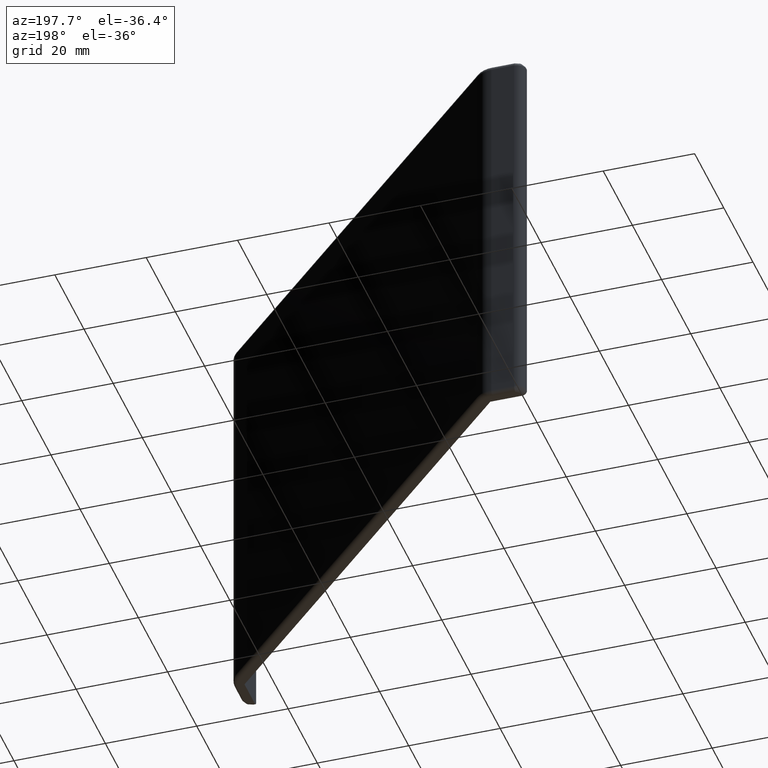
[diagram: clean part render]
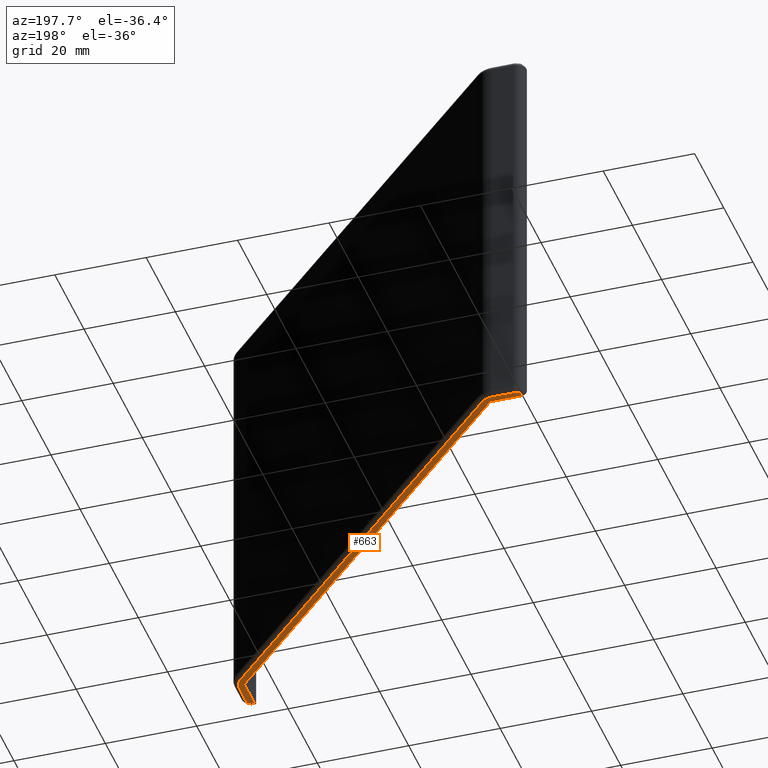
[diagram: same view with one face highlighted and labeled with its STEP entity id]
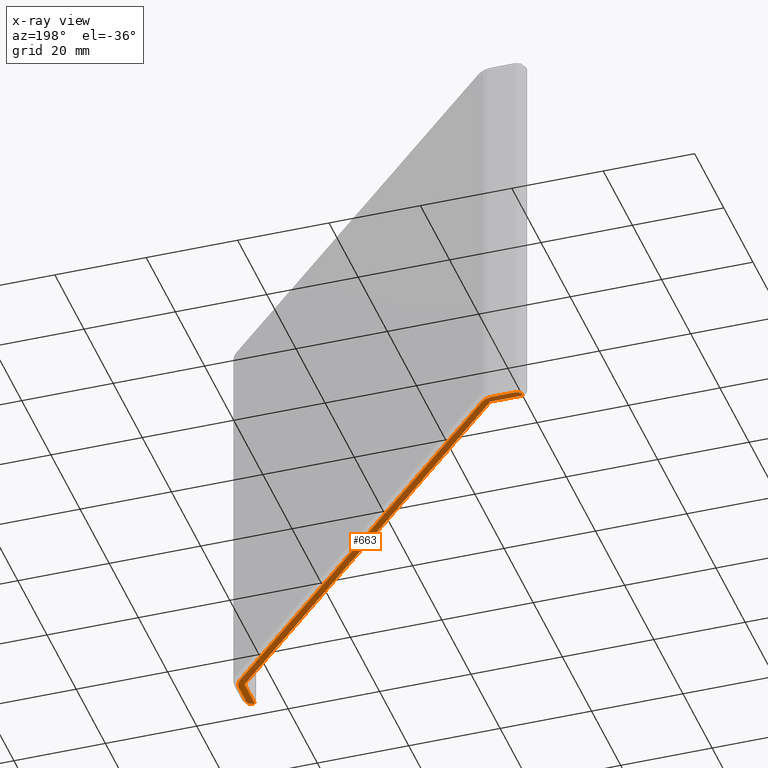
[diagram: x-ray of the same camera — body ghosted, the highlighted face saturated]
A machine part, auxiliary view. The second image highlights one B-rep face of the part: STEP entity #663.
The next image is the same camera in x-ray: the body ghosted, the highlighted face saturated — about 0% of this face is hidden behind the body in this view.
In plain terms, the highlighted planar face has unit normal (0, 0, 1).
Its self-contained STEP definition (entity closure, byte-faithful):
#43=FACE_OUTER_BOUND('',#85,.T.);
#85=EDGE_LOOP('',(#458,#459,#460,#461,#462,#463,#464,#465,#466,#467,#468,
#469));
#136=LINE('',#1023,#198);
#137=LINE('',#1027,#199);
#138=LINE('',#1031,#200);
#139=LINE('',#1033,#201);
#140=LINE('',#1035,#202);
#141=LINE('',#1037,#203);
#142=LINE('',#1039,#204);
#143=LINE('',#1042,#205);
#198=VECTOR('',#804,109.651803615609);
#199=VECTOR('',#807,4.96446609406728);
#200=VECTOR('',#810,0.499999999999987);
#201=VECTOR('',#811,7.);
#202=VECTOR('',#812,111.722871427475);
#203=VECTOR('',#813,7.);
#204=VECTOR('',#814,0.499999999999989);
#205=VECTOR('',#817,4.96446609406724);
#256=CIRCLE('',#712,4.);
#257=CIRCLE('',#713,4.);
#258=CIRCLE('',#714,1.);
#259=CIRCLE('',#715,1.);
#300=VERTEX_POINT('',#1019);
#301=VERTEX_POINT('',#1020);
#302=VERTEX_POINT('',#1022);
#303=VERTEX_POINT('',#1024);
#304=VERTEX_POINT('',#1026);
#305=VERTEX_POINT('',#1028);
#306=VERTEX_POINT('',#1030);
#307=VERTEX_POINT('',#1032);
#308=VERTEX_POINT('',#1034);
#309=VERTEX_POINT('',#1036);
#310=VERTEX_POINT('',#1038);
#311=VERTEX_POINT('',#1040);
#360=EDGE_CURVE('',#300,#301,#256,.T.);
#361=EDGE_CURVE('',#300,#302,#136,.T.);
#362=EDGE_CURVE('',#303,#302,#257,.T.);
#363=EDGE_CURVE('',#303,#304,#137,.T.);
#364=EDGE_CURVE('',#304,#305,#258,.T.);
#365=EDGE_CURVE('',#305,#306,#138,.T.);
#366=EDGE_CURVE('',#307,#306,#139,.T.);
#367=EDGE_CURVE('',#308,#307,#140,.T.);
#368=EDGE_CURVE('',#309,#308,#141,.T.);
#369=EDGE_CURVE('',#309,#310,#142,.T.);
#370=EDGE_CURVE('',#310,#311,#259,.T.);
#371=EDGE_CURVE('',#311,#301,#143,.T.);
#458=ORIENTED_EDGE('',*,*,#360,.F.);
#459=ORIENTED_EDGE('',*,*,#361,.T.);
#460=ORIENTED_EDGE('',*,*,#362,.F.);
#461=ORIENTED_EDGE('',*,*,#363,.T.);
#462=ORIENTED_EDGE('',*,*,#364,.T.);
#463=ORIENTED_EDGE('',*,*,#365,.T.);
#464=ORIENTED_EDGE('',*,*,#366,.F.);
#465=ORIENTED_EDGE('',*,*,#367,.F.);
#466=ORIENTED_EDGE('',*,*,#368,.F.);
#467=ORIENTED_EDGE('',*,*,#369,.T.);
#468=ORIENTED_EDGE('',*,*,#370,.T.);
#469=ORIENTED_EDGE('',*,*,#371,.T.);
#643=PLANE('',#711);
#663=ADVANCED_FACE('',(#43),#643,.F.);
#711=AXIS2_PLACEMENT_3D('',#1018,#800,#801);
#712=AXIS2_PLACEMENT_3D('',#1021,#802,#803);
#713=AXIS2_PLACEMENT_3D('',#1025,#805,#806);
#714=AXIS2_PLACEMENT_3D('',#1029,#808,#809);
#715=AXIS2_PLACEMENT_3D('',#1041,#815,#816);
#800=DIRECTION('center_axis',(0.,0.,1.));
#801=DIRECTION('ref_axis',(1.,0.,0.));
#802=DIRECTION('center_axis',(0.,0.,1.));
#803=DIRECTION('ref_axis',(1.,0.,0.));
#804=DIRECTION('',(0.707106781186548,-0.707106781186547,0.));
#805=DIRECTION('center_axis',(0.,0.,1.));
#806=DIRECTION('ref_axis',(1.,0.,0.));
#807=DIRECTION('',(0.,-1.,0.));
#808=DIRECTION('center_axis',(0.,0.,-1.));
#809=DIRECTION('ref_axis',(1.,0.,0.));
#810=DIRECTION('',(-1.,0.,0.));
#811=DIRECTION('',(0.,-1.,0.));
#812=DIRECTION('',(0.707106781186548,-0.707106781186547,0.));
#813=DIRECTION('',(1.,0.,0.));
#814=DIRECTION('',(1.47115392784558E-16,1.,0.));
#815=DIRECTION('center_axis',(0.,0.,-1.));
#816=DIRECTION('ref_axis',(1.,0.,0.));
#817=DIRECTION('',(1.,0.,0.));
#1018=CARTESIAN_POINT('Origin',(-5.57195890989182E-15,87.,-42.5));
#1019=CARTESIAN_POINT('',(9.79289321881342,87.3284271247462,-42.5));
#1020=CARTESIAN_POINT('',(6.96446609406723,88.5,-42.5));
#1021=CARTESIAN_POINT('Origin',(6.96446609406723,84.5,-42.5));
#1022=CARTESIAN_POINT('',(87.3284271247462,9.79289321881346,-42.5));
#1023=CARTESIAN_POINT('',(5.0606601717798,92.0606601717798,-42.5));
#1024=CARTESIAN_POINT('',(88.5,6.96446609406727,-42.5));
#1025=CARTESIAN_POINT('Origin',(84.5,6.96446609406727,-42.5));
#1026=CARTESIAN_POINT('',(88.5,2.,-42.5));
#1027=CARTESIAN_POINT('',(88.5,87.,-42.5));
#1028=CARTESIAN_POINT('',(87.5,1.,-42.5));
#1029=CARTESIAN_POINT('Origin',(87.5,2.,-42.5));
#1030=CARTESIAN_POINT('',(87.,1.,-42.5));
#1031=CARTESIAN_POINT('',(-5.57195890989182E-15,1.,-42.5));
#1032=CARTESIAN_POINT('',(87.,8.,-42.5));
#1033=CARTESIAN_POINT('',(87.,8.,-42.5));
#1034=CARTESIAN_POINT('',(7.99999999999999,87.,-42.5));
#1035=CARTESIAN_POINT('',(7.99999999999999,87.,-42.5));
#1036=CARTESIAN_POINT('',(0.999999999999995,87.,-42.5));
#1037=CARTESIAN_POINT('',(-5.57195890989182E-15,87.,-42.5));
#1038=CARTESIAN_POINT('',(0.999999999999995,87.5,-42.5));
#1039=CARTESIAN_POINT('',(0.999999999999995,87.,-42.5));
#1040=CARTESIAN_POINT('',(2.,88.5,-42.5));
#1041=CARTESIAN_POINT('Origin',(1.99999999999999,87.5,-42.5));
#1042=CARTESIAN_POINT('',(-5.57195890989182E-15,88.5,-42.5));